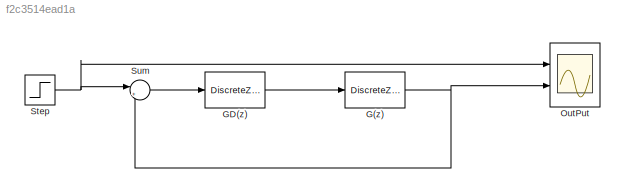
MODEL slx_f2c3514ead1a
KIND model
CONFIG AbsTol = auto
CONFIG EnableMultiTasking = off
CONFIG FixedStep = auto
CONFIG MaxStep = auto
CONFIG MinStep = auto
CONFIG RelTol = 1e-3
CONFIG SampleTimeConstraint = Unconstrained
CONFIG Solver = VariableStepAuto
CONFIG SolverName = VariableStepAuto
CONFIG StartTime = 0.0
CONFIG StopTime = 50
BLOCK [DiscreteZeroPole] G(z) 
  Gain = -6.1431e-04
  Poles = [1 0.7788 0.3972]
  SampleTime = 10
  Zeros = [-2.8306 -0.1967 ]
BLOCK [DiscreteZeroPole] GD(z) 
  Gain = 0.261/(-6.1431*10^-4)
  Poles = [-0.7389 -0.1967]
  SampleTime = 10
  Zeros = [0.7788 0.3972]
BLOCK [Scope] OutPut 
  NumInputPorts = 2
  Ports = [2]
  ScopeSpecificationString = Simulink.scopes.TimeScopeBlockCfg('CurrentConfiguration', extmgr.ConfigurationSet(extmgr.Configuration('Core','General UI',true),extmgr.Configuration('Core','Source UI',true),extmgr.Configuration('Sources','WiredSimulink',true),extmgr.Configuration('Visuals','Time Domain',true,'SerializedDisplays',{struct('MinYLimReal','-0.125','MaxYLimReal','1.125','YLabelReal','','MinYLimMag','0.00000','MaxYLimM...<+1812ch>
BLOCK [Step] Step
  SampleTime = 0
BLOCK [Sum] Sum
  IconShape = round
  InputSameDT = off
  Inputs = |+-
  OutDataTypeStr = Inherit: Inherit via internal rule
  Ports = [2, 1]
  SaturateOnIntegerOverflow = off
NET G(z) :1 -> OutPut :2, Sum:2
LINE GD(z) :1 -> G(z) :1
NET Step:1 -> OutPut :1, Sum:1
LINE Sum:1 -> GD(z) :1
note: NET lines group one-source signal fan-out (src -> all destinations, sorted); 1:1 wires keep LINE
